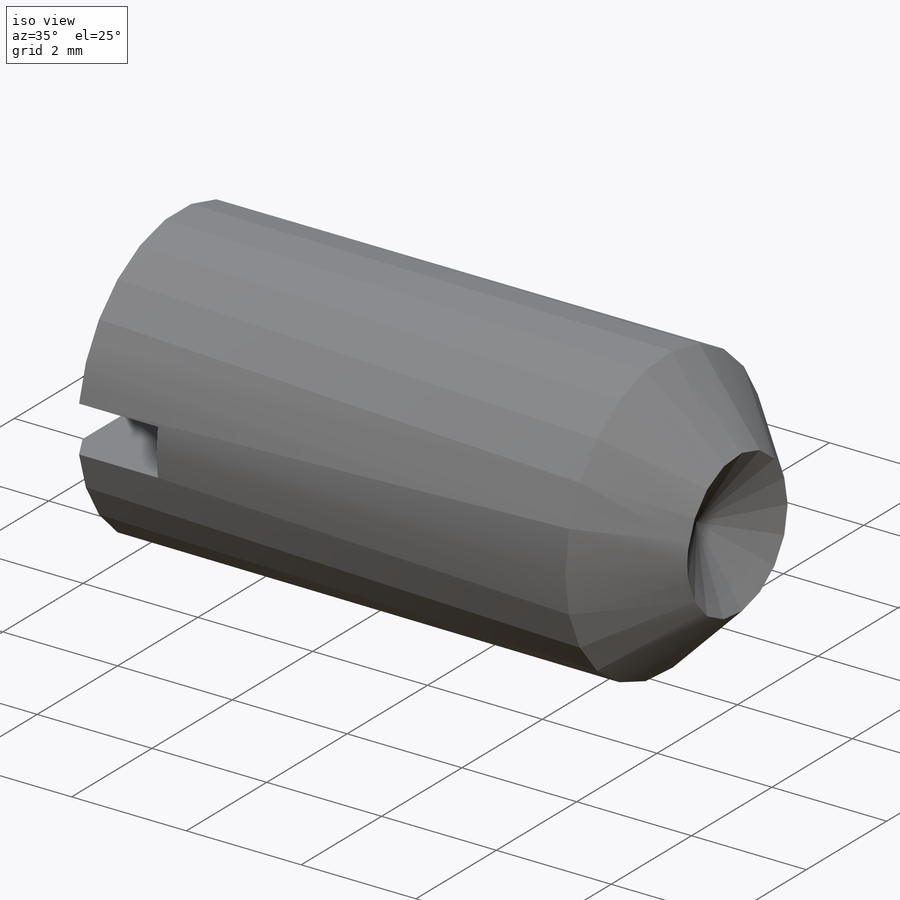
[diagram: iso view]
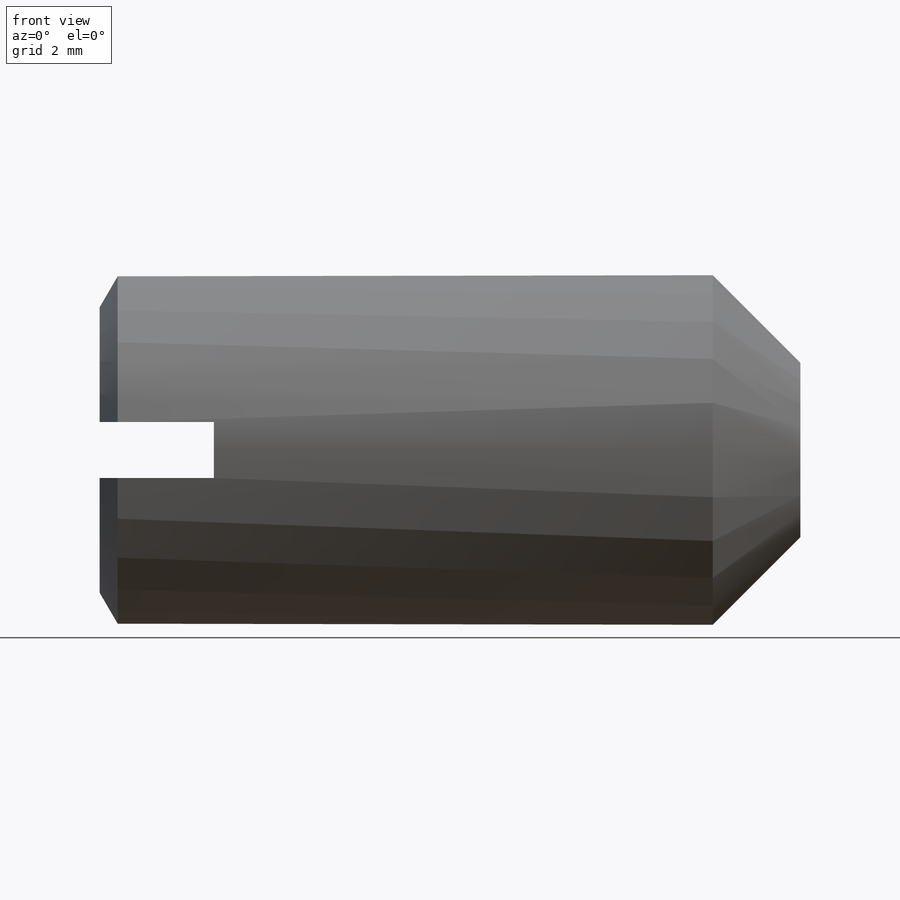
[diagram: front view]
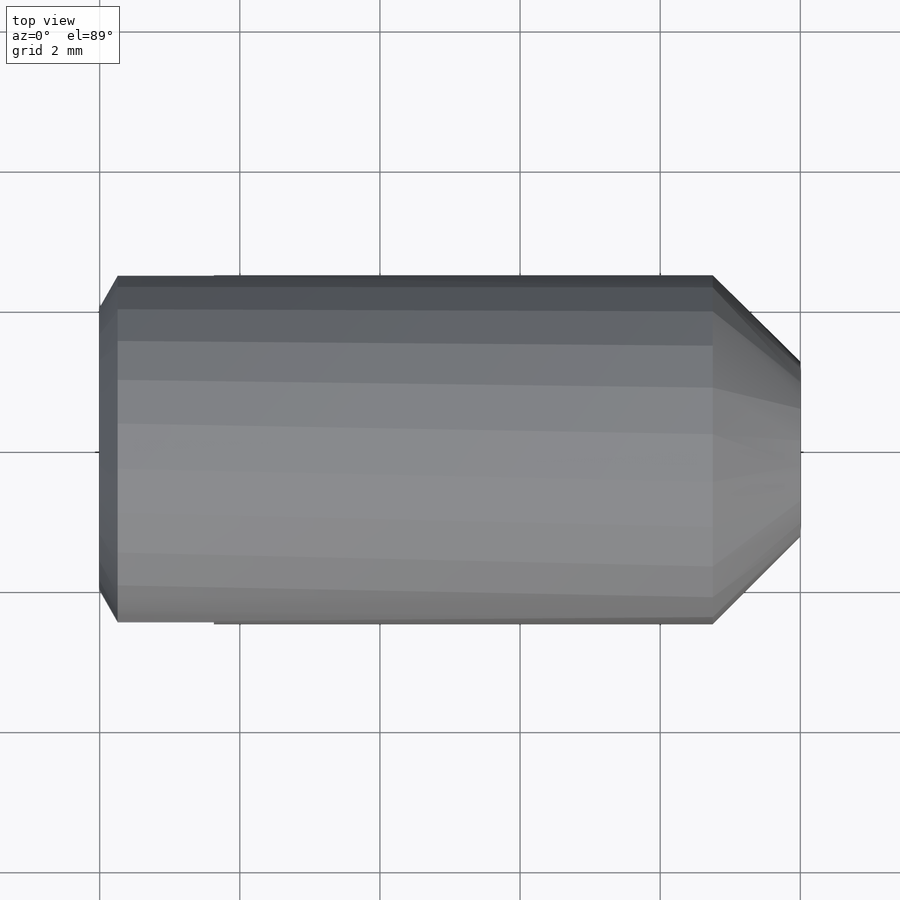
[diagram: top view]
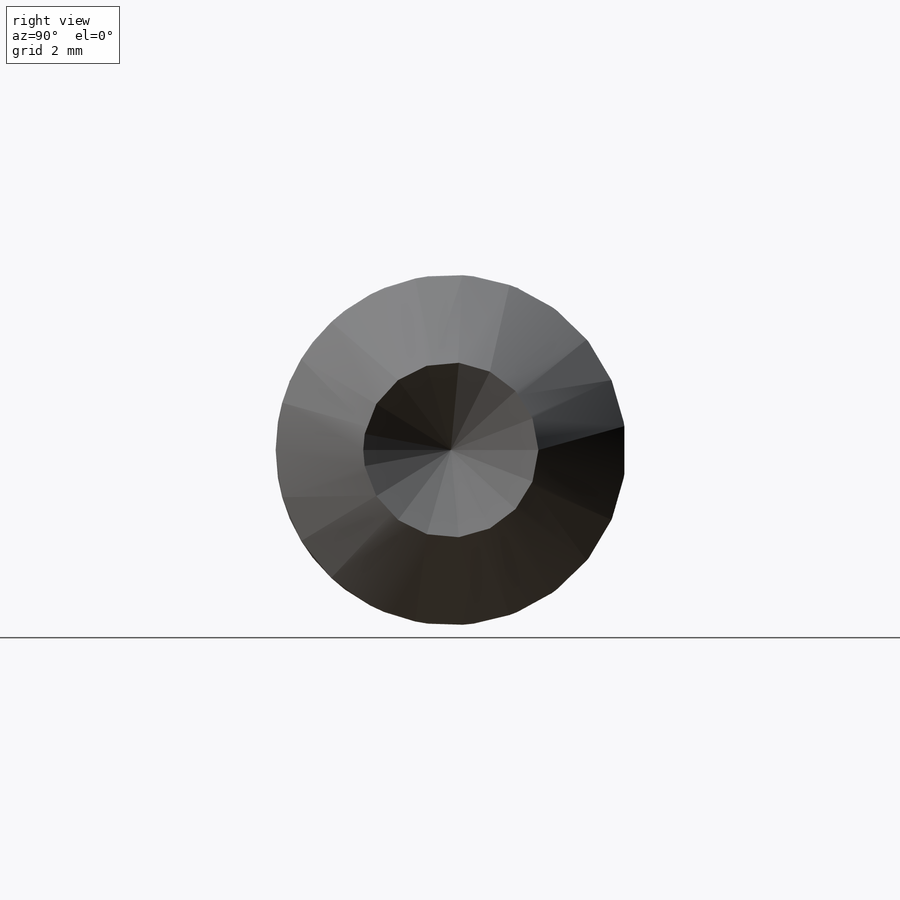
[diagram: right view]
SOLIDWORKS PART (.sldprt)
format: sldprt  version: not decoded by parser v0  size: 198,144 bytes
history: native  units: mm
features: plane x3, sketch x3, material x1, revolve x1, thread x1, cut_extrude x1, cut_revolve x1, pattern_linear x1 (+12 scaffold rows collapsed; 1 parser-record rows omitted)
feature tree (25):
  parser-record x1  (decoder bookkeeping rows leaked as tree rows — omitted from the tree; the rows remain in map.json)
  scaffold x12  (default folders/planes/origin — collapsed)
  material  "Material <not specified>"
  plane  "Plane1"
  plane  "Plane2"
  plane  "Plane3"
  sketch  "BodySke"  dims[c1.Oval_radius=14.2748mm c1.Crown_radius=19.05mm c1.D1=~35.921024mm c2.D1=270.0deg c3.D1=~35.921024mm c3.Cone_ang=90.0deg c3.Length=50.8mm c3.Diameter=25.4mm c3.D4=~4.490128mm c3.Drive_ch_ang=45.0deg c3.Thread_min=~21.62048mm c4.D1=~8.980256mm c4.Cup_nose_ang=45.0deg c5.D1=~7.099516mm c5.Cup_ang=118.0deg c5.Cup_dia=15.4686mm c5.Length=50.8mm c6.Length=50.8mm c6.Diameter=25.4mm c7.Diameter=5.0mm c7.Length=50.8mm c8.Length=50.8mm c8.D1=~10.627963mm c8.Nose_ch_ang=30.0deg c8.Flat_dia=11.43mm c9.D1=13.335mm c9.Nose_ch_ang=45.0deg c9.Length=10.0mm c9.Cup_dia=8.5mm c9.Advance=0.8mm c9.Thread_lim=44.9834mm c9.TipLength=3.81mm c9.Head_ht=~2.552216mm c9.BodyLength=~44.437784mm c9.Minor_dia=4.11mm c9.D2=~1.367235mm c9.Drive_ch_ang=60.0deg c10.D1=~2.474874mm c10.Nose_ch_ang=45.0deg c10.Cup_dia=2.5mm c11.D1=~4.651949mm c11.Cup_ang=120.0deg]
  revolve  "BaseBody"  [1 undecoded]
  thread  "ThreadCosmetic"  Diameter=10.072mm Thread_minor=10.072mm  [1 undecoded]
  cut_extrude  "Slot"  [1 undecoded]
  sketch  "Sketch2"  dims[c1.D1=5.0mm c1.Slot_width=0.8mm c1.D3=2.5mm c1.D2=0.4mm c1.Slot_depth=1.63mm c2.D1=360.0deg c2.Cup_dia=2.5mm]
  sketch  "ThdSchSke"  dims[c1.Thread_minor=~1.03886mm c1.Diameter=~1.413535mm c1.Start=~0.988134mm c1.D4=~4.446753mm c1.Vee=60.0deg c2.Thread_minor=~1.03886mm c2.Start=~2.540025mm c2.D1=~0.108159mm c2.D2=~0.108159mm c3.D1=~0.216319mm c3.SideAngle=55.0deg c3.D2=~0.216319mm c3.VeeAngle=70.0deg c3.Thread_minor=4.11mm c3.Overcut=6.25mm c3.Diameter=5.0mm c3.D6=~8.326268mm c4.D1=~8.326268mm c5.D1=90.0deg c5.Start=63.5mm c6.Start=15.8496mm c7.Start=~2.552216mm c8.Start=~2.552216mm c9.Start=~2.552216mm]
  cut_revolve  "ThreadSchematic"  Angle=360deg
  pattern_linear  "ThdSchPat"  Count1=12 Count2=1 Spacing1=0.772098mm Spacing2=50mm Num_threads=12 Advance=0.772098mm ConfigurationName=0mm CopiedFlag=1 PartNumberID=0mm
decode coverage: 6 of 8 modeling features carry decoded parameters
note: ~ marks probable driven/reference dimensions
note: 3 parameter values undecoded
note: suppression state not decoded; provenance and decode notes live in map.json
